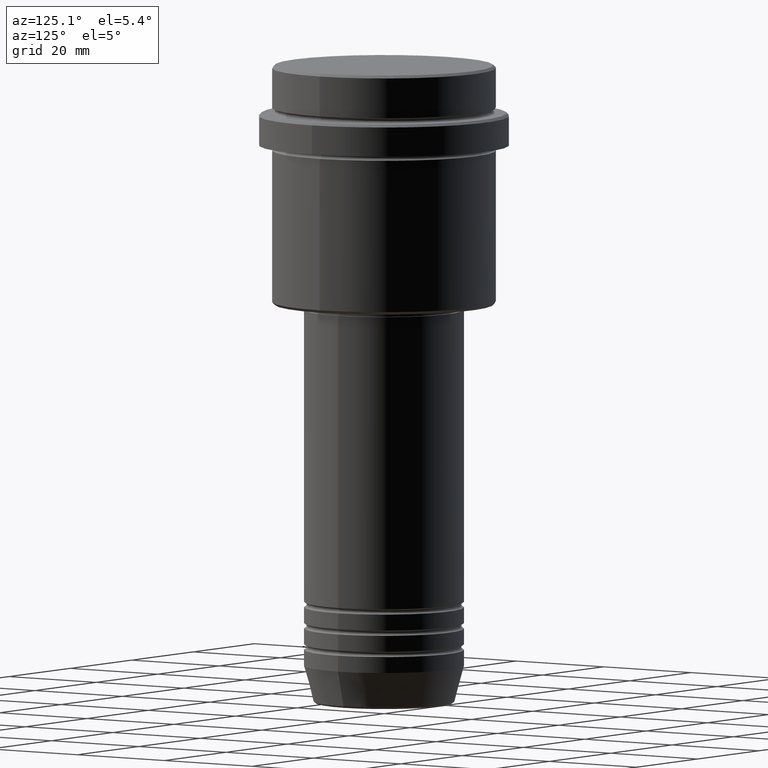
[diagram: clean part render]
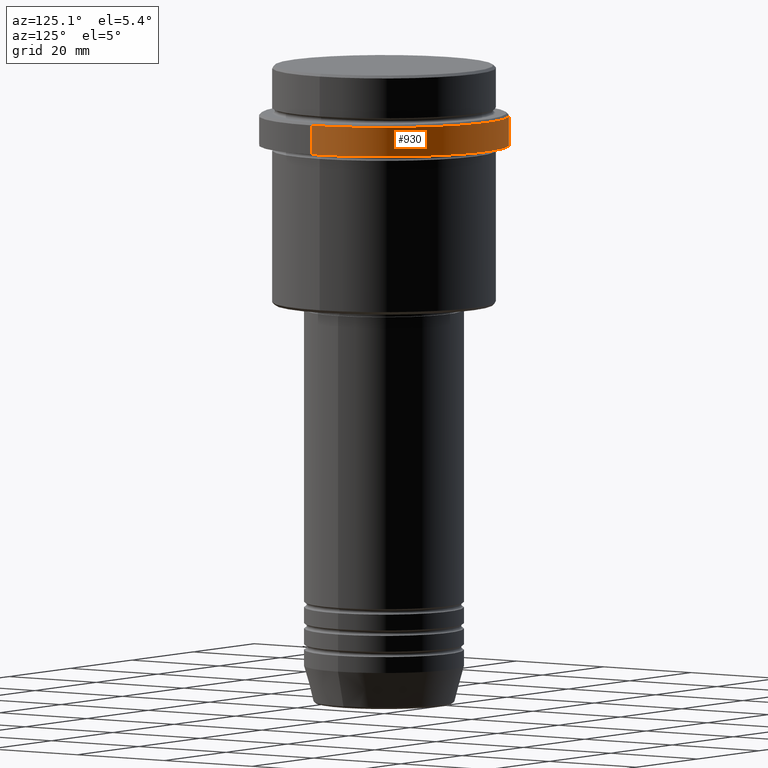
[diagram: same view with one face highlighted and labeled with its STEP entity id]
A machine part, auxiliary view. The second image highlights one B-rep face of the part: STEP entity #930.
In plain terms, the highlighted cylindrical surface (partial cylindrical patch) has radius 23.5 mm, axis along (-0, -0, 1).
Its self-contained STEP definition (entity closure, byte-faithful):
#69 = CARTESIAN_POINT ( 'NONE',  ( 23.50000000000000000, 0.000000000000000000, 0.000000000000000000 ) ) ;
#119 = CARTESIAN_POINT ( 'NONE',  ( 23.50000000000000355, 0.000000000000000000, -15.00000000000000000 ) ) ;
#145 = DIRECTION ( 'NONE',  ( 1.000000000000000000, 0.000000000000000000, 0.000000000000000000 ) ) ;
#166 = DIRECTION ( 'NONE',  ( 1.000000000000000000, 0.000000000000000000, 0.000000000000000000 ) ) ;
#258 = ORIENTED_EDGE ( 'NONE', *, *, #1358, .T. ) ;
#272 = VECTOR ( 'NONE', #662, 1000.000000000000000 ) ;
#279 = VERTEX_POINT ( 'NONE', #431 ) ;
#293 = DIRECTION ( 'NONE',  ( -0.000000000000000000, -0.000000000000000000, 1.000000000000000000 ) ) ;
#296 = CARTESIAN_POINT ( 'NONE',  ( -23.50000000000000000, 2.877919977996280320E-15, -9.500000000000026645 ) ) ;
#381 = LINE ( 'NONE', #69, #1304 ) ;
#411 = LINE ( 'NONE', #1218, #272 ) ;
#429 = EDGE_LOOP ( 'NONE', ( #803, #1215, #258, #687 ) ) ;
#431 = CARTESIAN_POINT ( 'NONE',  ( -23.50000000000000711, 2.877919977996281109E-15, -15.00000000000000000 ) ) ;
#462 = FACE_OUTER_BOUND ( 'NONE', #429, .T. ) ;
#547 = VERTEX_POINT ( 'NONE', #119 ) ;
#561 = AXIS2_PLACEMENT_3D ( 'NONE', #691, #1340, #166 ) ;
#587 = CARTESIAN_POINT ( 'NONE',  ( 0.000000000000000000, 0.000000000000000000, 0.000000000000000000 ) ) ;
#612 = EDGE_CURVE ( 'NONE', #547, #279, #1348, .T. ) ;
#639 = DIRECTION ( 'NONE',  ( -0.000000000000000000, -0.000000000000000000, 1.000000000000000000 ) ) ;
#662 = DIRECTION ( 'NONE',  ( -0.000000000000000000, -0.000000000000000000, 1.000000000000000000 ) ) ;
#687 = ORIENTED_EDGE ( 'NONE', *, *, #1171, .F. ) ;
#691 = CARTESIAN_POINT ( 'NONE',  ( 0.000000000000000000, 0.000000000000000000, -9.500000000000026645 ) ) ;
#762 = CARTESIAN_POINT ( 'NONE',  ( 0.000000000000000000, 0.000000000000000000, -15.00000000000000000 ) ) ;
#798 = DIRECTION ( 'NONE',  ( -0.000000000000000000, -0.000000000000000000, 1.000000000000000000 ) ) ;
#803 = ORIENTED_EDGE ( 'NONE', *, *, #612, .T. ) ;
#835 = AXIS2_PLACEMENT_3D ( 'NONE', #762, #639, #1114 ) ;
#838 = VERTEX_POINT ( 'NONE', #296 ) ;
#930 = ADVANCED_FACE ( 'NONE', ( #462 ), #1128, .T. ) ;
#984 = CARTESIAN_POINT ( 'NONE',  ( 23.50000000000000000, 0.000000000000000000, -9.500000000000026645 ) ) ;
#1042 = AXIS2_PLACEMENT_3D ( 'NONE', #587, #798, #145 ) ;
#1114 = DIRECTION ( 'NONE',  ( 1.000000000000000000, 0.000000000000000000, 0.000000000000000000 ) ) ;
#1128 = CYLINDRICAL_SURFACE ( 'NONE', #1042, 23.50000000000000000 ) ;
#1171 = EDGE_CURVE ( 'NONE', #547, #1337, #381, .T. ) ;
#1212 = CIRCLE ( 'NONE', #561, 23.50000000000000000 ) ;
#1215 = ORIENTED_EDGE ( 'NONE', *, *, #1400, .T. ) ;
#1218 = CARTESIAN_POINT ( 'NONE',  ( -23.50000000000000000, 2.877919977996280320E-15, 0.000000000000000000 ) ) ;
#1304 = VECTOR ( 'NONE', #293, 1000.000000000000000 ) ;
#1337 = VERTEX_POINT ( 'NONE', #984 ) ;
#1340 = DIRECTION ( 'NONE',  ( 0.000000000000000000, 0.000000000000000000, -1.000000000000000000 ) ) ;
#1348 = CIRCLE ( 'NONE', #835, 23.50000000000000355 ) ;
#1358 = EDGE_CURVE ( 'NONE', #838, #1337, #1212, .T. ) ;
#1400 = EDGE_CURVE ( 'NONE', #279, #838, #411, .T. ) ;